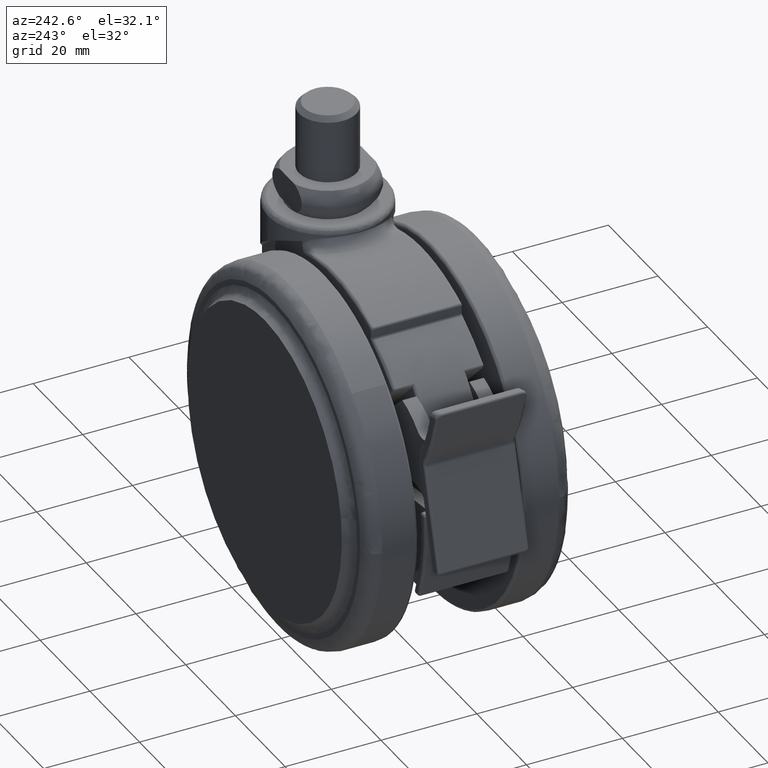
[diagram: clean part render]
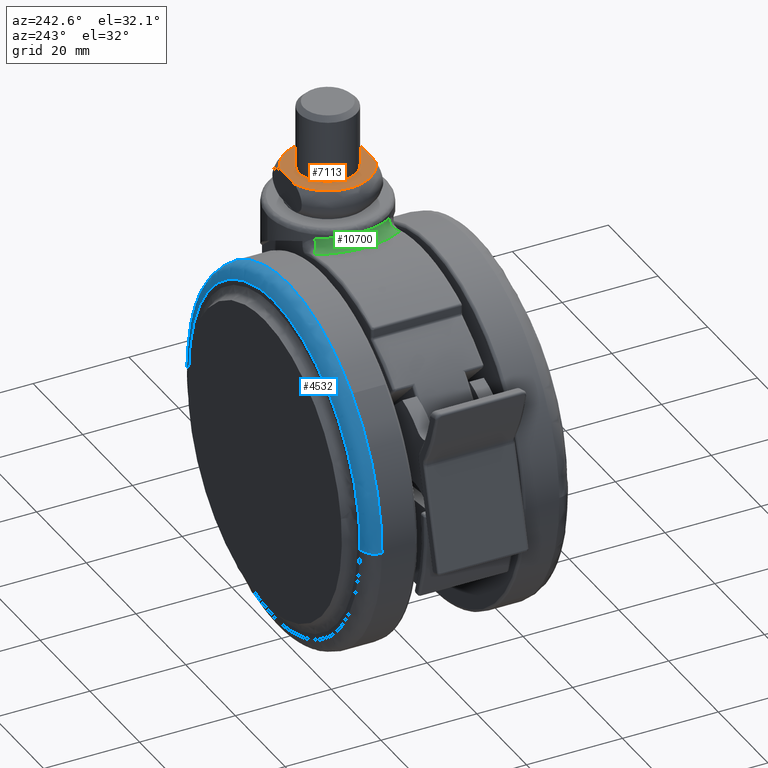
[diagram: same view with three faces highlighted in distinct colors, each labeled with its STEP entity id]
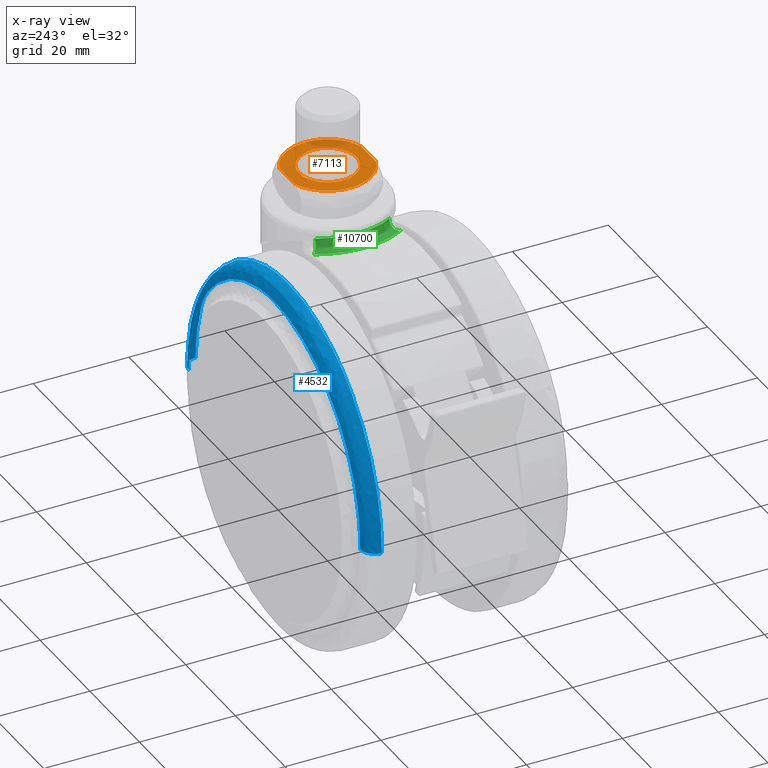
[diagram: x-ray of the same camera — body ghosted, the three highlighted faces saturated]
A machine part, auxiliary view with three faces highlighted in distinct colors.
The next image is the same camera in x-ray (body ghosted, the three faces saturated) — at least one of them is partly hidden behind the body in this view.
Their STEP definitions:

[orange] entity #7113 — the highlighted face is a freeform B-spline surface patch.
#6767=CARTESIAN_POINT('',(0.052359213223113,5.999771538383024,6.499999999999730));
#6768=VERTEX_POINT('',#6767);
#6774=CARTESIAN_POINT('',(-6.0,2.842171E-014,6.499999999999730));
#6775=VERTEX_POINT('',#6774);
#6776=CARTESIAN_POINT('',(0.052359213223113,5.999771538383026,6.499999999999730));
#6777=CARTESIAN_POINT('',(0.026180105040651,6.000000000000029,6.499999999999731));
#6778=CARTESIAN_POINT('',(0.0,6.000000000000028,6.499999999999730));
#6779=CARTESIAN_POINT('',(-6.0,6.000000000000028,6.499999999999731));
#6780=CARTESIAN_POINT('',(-6.0,2.842171E-014,6.499999999999730));
#6788=(BOUNDED_CURVE()B_SPLINE_CURVE(2,(#6776,#6777,#6778,#6779,#6780),.UNSPECIFIED.,.F.,.U.)B_SPLINE_CURVE_WITH_KNOTS((3,2,3),(0.248460105658176,0.250000000000000,0.500000000000000),.UNSPECIFIED.)CURVE()GEOMETRIC_REPRESENTATION_ITEM()RATIONAL_B_SPLINE_CURVE((0.996414028084584,0.998195901558362,1.0,0.707106781186548,1.0))REPRESENTATION_ITEM(''));
#6789=EDGE_CURVE('',#6768,#6775,#6788,.T.);
#6791=CARTESIAN_POINT('',(-0.052359213223113,-5.999771538382967,6.499999999999729));
#6792=VERTEX_POINT('',#6791);
#6793=CARTESIAN_POINT('',(-6.0,2.842171E-014,6.499999999999730));
#6794=CARTESIAN_POINT('',(-6.000000000000001,-5.947867263338975,6.499999999999731));
#6795=CARTESIAN_POINT('',(-0.052359213223114,-5.999771538382967,6.499999999999730));
#6803=(BOUNDED_CURVE()B_SPLINE_CURVE(2,(#6793,#6794,#6795),.UNSPECIFIED.,.F.,.U.)B_SPLINE_CURVE_WITH_KNOTS((3,3),(0.500000000000000,0.748460105658176),.UNSPECIFIED.)CURVE()GEOMETRIC_REPRESENTATION_ITEM()RATIONAL_B_SPLINE_CURVE((1.0,0.708910879628185,0.996414028084584))REPRESENTATION_ITEM(''));
#6804=EDGE_CURVE('',#6775,#6792,#6803,.T.);
#6834=CARTESIAN_POINT('',(6.0,2.842171E-014,6.499999999999730));
#6835=VERTEX_POINT('',#6834);
#6836=CARTESIAN_POINT('',(-0.052359213223114,-5.999771538382967,6.499999999999730));
#6837=CARTESIAN_POINT('',(-0.026180105040651,-5.999999999999972,6.499999999999730));
#6838=CARTESIAN_POINT('',(0.0,-5.999999999999972,6.499999999999730));
#6839=CARTESIAN_POINT('',(6.0,-5.999999999999970,6.499999999999731));
#6840=CARTESIAN_POINT('',(6.0,2.842171E-014,6.499999999999730));
#6848=(BOUNDED_CURVE()B_SPLINE_CURVE(2,(#6836,#6837,#6838,#6839,#6840),.UNSPECIFIED.,.F.,.U.)B_SPLINE_CURVE_WITH_KNOTS((3,2,3),(0.748460105658176,0.750000000000000,1.0),.UNSPECIFIED.)CURVE()GEOMETRIC_REPRESENTATION_ITEM()RATIONAL_B_SPLINE_CURVE((0.996414028084584,0.998195901558362,1.0,0.707106781186548,1.0))REPRESENTATION_ITEM(''));
#6849=EDGE_CURVE('',#6792,#6835,#6848,.T.);
#6851=CARTESIAN_POINT('',(6.0,2.842171E-014,6.499999999999730));
#6852=CARTESIAN_POINT('',(5.999999999999999,5.947867263339033,6.499999999999730));
#6853=CARTESIAN_POINT('',(0.052359213223113,5.999771538383026,6.499999999999730));
#6861=(BOUNDED_CURVE()B_SPLINE_CURVE(2,(#6851,#6852,#6853),.UNSPECIFIED.,.F.,.U.)B_SPLINE_CURVE_WITH_KNOTS((3,3),(0.0,0.248460105658176),.UNSPECIFIED.)CURVE()GEOMETRIC_REPRESENTATION_ITEM()RATIONAL_B_SPLINE_CURVE((1.0,0.708910879628185,0.996414028084584))REPRESENTATION_ITEM(''));
#6862=EDGE_CURVE('',#6835,#6768,#6861,.T.);
#6892=CARTESIAN_POINT('',(2.958037778009130,8.500000000000000,6.499999999999620));
#6893=VERTEX_POINT('',#6892);
#6957=CARTESIAN_POINT('',(2.958037778009625,-8.499999999999911,6.500000005047590));
#6958=VERTEX_POINT('',#6957);
#6959=CARTESIAN_POINT('',(2.958037778009130,8.500000000000000,6.499999999999620));
#6960=CARTESIAN_POINT('',(3.450471789791480,8.328674877310331,6.500000000411056));
#6961=CARTESIAN_POINT('',(4.431981336880804,7.888200311602330,6.500000001231056));
#6962=CARTESIAN_POINT('',(5.584003302275835,7.099344023012740,6.500000002193604));
#6963=CARTESIAN_POINT('',(6.628591784893149,6.135420301316323,6.500000003066159));
#6964=CARTESIAN_POINT('',(7.617276336929360,4.914798155761678,6.500000003893173));
#6965=CARTESIAN_POINT('',(8.427791304637349,3.331336107949301,6.500000004566722));
#6966=CARTESIAN_POINT('',(8.924742280020190,1.538044099653736,6.500000004993979));
#6967=CARTESIAN_POINT('',(9.057393769681706,-0.175487109177838,6.500000005062931));
#6968=CARTESIAN_POINT('',(8.836724667914334,-1.994721209292290,6.500000005042486));
#6969=CARTESIAN_POINT('',(8.280114974681263,-3.682237788190198,6.500000005049047));
#6970=CARTESIAN_POINT('',(7.410328424283218,-5.196323585905008,6.500000005047383));
#6971=CARTESIAN_POINT('',(6.261169792903575,-6.547379351125835,6.500000005047615));
#6972=CARTESIAN_POINT('',(4.796803141335110,-7.702773943022631,6.500000005047601));
#6973=CARTESIAN_POINT('',(3.587282182677676,-8.281141085214323,6.500000005047573));
#6974=CARTESIAN_POINT('',(2.958037778009625,-8.499999999999911,6.500000005047590));
#6975=B_SPLINE_CURVE_WITH_KNOTS('',3,(#6959,#6960,#6961,#6962,#6963,#6964,#6965,#6966,#6967,#6968,#6969,#6970,#6971,#6972,#6973,#6974),.UNSPECIFIED.,.F.,.U.,(4,1,1,1,1,1,1,1,1,1,1,1,1,4),(0.000000192242798,1.564162556582112,3.215277752408213,4.171166189164936,5.822273905647311,7.907869952999008,9.472102464231288,11.383811692289090,13.034890967556329,14.946708697081741,16.684719789597850,18.248926019357238,20.247646021490791,22.246291718154030),.UNSPECIFIED.);
#6976=EDGE_CURVE('',#6893,#6958,#6975,.T.);
#7064=CARTESIAN_POINT('',(-9.899099201056602,-9.349149967050611,6.500000002523620));
#7065=CARTESIAN_POINT('',(9.899099683854189,-9.349149967050611,6.500000002523620));
#7066=CARTESIAN_POINT('',(-9.899099201056602,9.349150423026231,6.500000002523620));
#7067=CARTESIAN_POINT('',(9.899099683854189,9.349150423026231,6.500000002523620));
#7068=B_SPLINE_SURFACE_WITH_KNOTS('',1,1,((#7064,#7066),(#7065,#7067)),.UNSPECIFIED.,.F.,.F.,.U.,(2,2),(2,2),(0.0,19.798198884910789),(0.0,18.698300390076842),.UNSPECIFIED.);
#7069=CARTESIAN_POINT('',(-2.958037778009130,8.500000000000000,6.500000005047590));
#7070=VERTEX_POINT('',#7069);
#7071=CARTESIAN_POINT('',(2.958037778009130,8.500000000000000,6.499999999999620));
#7072=CARTESIAN_POINT('',(-2.958037778009130,8.500000000000000,6.500000005047590));
#7073=QUASI_UNIFORM_CURVE('',1,(#7071,#7072),.UNSPECIFIED.,.F.,.U.);
#7074=EDGE_CURVE('',#6893,#7070,#7073,.T.);
#7075=ORIENTED_EDGE('',*,*,#7074,.T.);
#7076=CARTESIAN_POINT('',(-2.958037778009625,-8.499999999999911,6.499999999999620));
#7077=VERTEX_POINT('',#7076);
#7078=CARTESIAN_POINT('',(-2.958037778009625,-8.499999999999911,6.499999999999620));
#7079=CARTESIAN_POINT('',(-3.505191640945327,-8.309661604369689,6.500000000456753));
#7080=CARTESIAN_POINT('',(-4.456791574253676,-7.871449562081987,6.500000001251817));
#7081=CARTESIAN_POINT('',(-5.603591382843556,-7.077992358055911,6.500000002209936));
#7082=CARTESIAN_POINT('',(-6.567442417667633,-6.197171119240892,6.500000003015228));
#7083=CARTESIAN_POINT('',(-7.326306664548474,-5.278412197983465,6.500000003649253));
#7084=CARTESIAN_POINT('',(-8.024343454167111,-4.140781605865873,6.500000004232393));
#7085=CARTESIAN_POINT('',(-8.488137373949472,-3.074735887196934,6.500000004620105));
#7086=CARTESIAN_POINT('',(-8.842811778932871,-1.818496998494626,6.500000004917118));
#7087=CARTESIAN_POINT('',(-9.049761467326716,-0.350737382126485,6.500000005082399));
#7088=CARTESIAN_POINT('',(-8.964676692575551,1.249957576164630,6.500000005036982));
#7089=CARTESIAN_POINT('',(-8.597027895506502,2.774549533199301,6.500000005049102));
#7090=CARTESIAN_POINT('',(-8.104555607089273,3.985623964878834,6.500000005047969));
#7091=CARTESIAN_POINT('',(-7.325349404209156,5.312510051283311,6.500000005047355));
#7092=CARTESIAN_POINT('',(-6.261878011762858,6.550612389649610,6.500000005047541));
#7093=CARTESIAN_POINT('',(-4.743226544974553,7.725153657144978,6.500000005047991));
#7094=CARTESIAN_POINT('',(-3.614657331387783,8.271644136897930,6.500000005046799));
#7095=CARTESIAN_POINT('',(-2.958037778009130,8.500000000000000,6.500000005047590));
#7096=B_SPLINE_CURVE_WITH_KNOTS('',3,(#7078,#7079,#7080,#7081,#7082,#7083,#7084,#7085,#7086,#7087,#7088,#7089,#7090,#7091,#7092,#7093,#7094,#7095),.UNSPECIFIED.,.F.,.U.,(4,1,1,1,1,1,1,1,1,1,1,1,1,1,1,4),(0.000000192246205,1.737942532596673,3.128360514341786,4.171166189166815,5.648475213840698,6.691283131285266,8.168573489920295,9.124498555448156,10.601803637032910,12.600432010111859,13.903903936706360,15.294322892246131,16.510918853109320,18.509625382620261,20.160726363808820,22.246291718154069),.UNSPECIFIED.);
#7097=EDGE_CURVE('',#7077,#7070,#7096,.T.);
#7098=ORIENTED_EDGE('',*,*,#7097,.F.);
#7099=CARTESIAN_POINT('',(-2.958037778009625,-8.499999999999911,6.499999999999620));
#7100=CARTESIAN_POINT('',(2.958037778009625,-8.499999999999911,6.500000005047590));
#7101=QUASI_UNIFORM_CURVE('',1,(#7099,#7100),.UNSPECIFIED.,.F.,.U.);
#7102=EDGE_CURVE('',#7077,#6958,#7101,.T.);
#7103=ORIENTED_EDGE('',*,*,#7102,.T.);
#7104=ORIENTED_EDGE('',*,*,#6976,.F.);
#7105=EDGE_LOOP('',(#7075,#7098,#7103,#7104));
#7106=FACE_OUTER_BOUND('',#7105,.T.);
#7107=ORIENTED_EDGE('',*,*,#6862,.F.);
#7108=ORIENTED_EDGE('',*,*,#6849,.F.);
#7109=ORIENTED_EDGE('',*,*,#6804,.F.);
#7110=ORIENTED_EDGE('',*,*,#6789,.F.);
#7111=EDGE_LOOP('',(#7107,#7108,#7109,#7110));
#7112=FACE_BOUND('',#7111,.T.);
#7113=ADVANCED_FACE('',(#7106,#7112),#7068,.T.);

[blue] entity #4532 — the highlighted face is a freeform B-spline surface patch.
#4245=CARTESIAN_POINT('',(17.497039157643002,18.500000000455341,-40.028773504365802));
#4246=VERTEX_POINT('',#4245);
#4262=CARTESIAN_POINT('',(-20.0,18.500000000000000,-3.000000000000003));
#4263=VERTEX_POINT('',#4262);
#4264=CARTESIAN_POINT('',(17.497039157642991,18.500000000455348,-40.028773504365809));
#4265=CARTESIAN_POINT('',(17.031697371515918,18.500000000227672,-3.000000000000004));
#4266=CARTESIAN_POINT('',(-20.0,18.500000000000000,-3.000000000000003));
#4274=(BOUNDED_CURVE()B_SPLINE_CURVE(2,(#4264,#4265,#4266),.UNSPECIFIED.,.F.,.U.)B_SPLINE_CURVE_WITH_KNOTS((3,3),(0.252215704078312,0.500000000000000),.UNSPECIFIED.)CURVE()GEOMETRIC_REPRESENTATION_ITEM()RATIONAL_B_SPLINE_CURVE((0.994854295643921,0.709702639984287,1.0))REPRESENTATION_ITEM(''));
#4275=EDGE_CURVE('',#4246,#4263,#4274,.T.);
#4277=CARTESIAN_POINT('',(-45.334630980545427,18.500000000211710,-12.852098215604499));
#4278=VERTEX_POINT('',#4277);
#4279=CARTESIAN_POINT('',(-20.0,18.500000000000000,-3.000000000000003));
#4280=CARTESIAN_POINT('',(-34.582951035239880,18.500000000087439,-3.000000000000004));
#4281=CARTESIAN_POINT('',(-45.334630980545512,18.500000000211713,-12.852098215604435));
#4289=(BOUNDED_CURVE()B_SPLINE_CURVE(2,(#4279,#4280,#4281),.UNSPECIFIED.,.F.,.U.)B_SPLINE_CURVE_WITH_KNOTS((3,3),(0.500000000000000,0.618415199228371),.UNSPECIFIED.)CURVE()GEOMETRIC_REPRESENTATION_ITEM()RATIONAL_B_SPLINE_CURVE((1.0,0.861267964566265,0.853959782054475))REPRESENTATION_ITEM(''));
#4290=EDGE_CURVE('',#4263,#4278,#4289,.T.);
#4320=CARTESIAN_POINT('',(-57.497039157642988,18.500000000455351,-40.971226495634191));
#4321=VERTEX_POINT('',#4320);
#4322=CARTESIAN_POINT('',(-45.334630980545512,18.500000000211713,-12.852098215604435));
#4323=CARTESIAN_POINT('',(-57.499999999999986,18.500000000352326,-23.999603630427302));
#4324=CARTESIAN_POINT('',(-57.499999999999993,18.500000000452498,-40.500000000000007));
#4325=CARTESIAN_POINT('',(-57.499999999999986,18.500000000453930,-40.735622549700111));
#4326=CARTESIAN_POINT('',(-57.497039157642988,18.500000000455344,-40.971226495634191));
#4334=(BOUNDED_CURVE()B_SPLINE_CURVE(2,(#4322,#4323,#4324,#4325,#4326),.UNSPECIFIED.,.F.,.U.)B_SPLINE_CURVE_WITH_KNOTS((3,2,3),(0.618415199228371,0.750000000000000,0.752215704078312),.UNSPECIFIED.)CURVE()GEOMETRIC_REPRESENTATION_ITEM()RATIONAL_B_SPLINE_CURVE((0.853959782054475,0.845838816620283,1.0,0.997404141202261,0.994854295643921))REPRESENTATION_ITEM(''));
#4335=EDGE_CURVE('',#4278,#4321,#4334,.T.);
#4403=CARTESIAN_POINT('',(-54.497276025979460,21.500000000000028,-40.933528376008518));
#4404=VERTEX_POINT('',#4403);
#4405=CARTESIAN_POINT('',(-57.497039157642988,18.500000000455351,-40.971226495634191));
#4406=CARTESIAN_POINT('',(-57.497039157187622,21.499999999051884,-40.971226495634689));
#4407=CARTESIAN_POINT('',(-54.497276025979460,21.500000000000018,-40.933528376008518));
#4415=(BOUNDED_CURVE()B_SPLINE_CURVE(2,(#4405,#4406,#4407),.UNSPECIFIED.,.F.,.U.)B_SPLINE_CURVE_WITH_KNOTS((3,3),(-1.725134643126181,-0.274865357042298),.UNSPECIFIED.)CURVE()GEOMETRIC_REPRESENTATION_ITEM()RATIONAL_B_SPLINE_CURVE((0.883342149597530,0.624617224213166,0.883342149537418))REPRESENTATION_ITEM(''));
#4416=EDGE_CURVE('',#4321,#4404,#4415,.T.);
#4433=CARTESIAN_POINT('',(14.497276025979470,21.499999999999972,-40.066471623991482));
#4434=VERTEX_POINT('',#4433);
#4450=CARTESIAN_POINT('',(17.497039157642995,18.500000000455348,-40.028773504365795));
#4451=CARTESIAN_POINT('',(17.497039157187558,21.499999999051806,-40.028773504365283));
#4452=CARTESIAN_POINT('',(14.497276025979462,21.499999999999979,-40.066471623991475));
#4460=(BOUNDED_CURVE()B_SPLINE_CURVE(2,(#4450,#4451,#4452),.UNSPECIFIED.,.F.,.U.)B_SPLINE_CURVE_WITH_KNOTS((3,3),(-1.725134643126144,-0.274865357042294),.UNSPECIFIED.)CURVE()GEOMETRIC_REPRESENTATION_ITEM()RATIONAL_B_SPLINE_CURVE((0.883342149597517,0.624617224213172,0.883342149537419))REPRESENTATION_ITEM(''));
#4461=EDGE_CURVE('',#4246,#4434,#4460,.T.);
#4466=CARTESIAN_POINT('',(-57.476606423104158,18.291388672660315,-42.019227127127969));
#4467=CARTESIAN_POINT('',(-57.483153771816106,18.291388672660315,-41.498233097061259));
#4468=CARTESIAN_POINT('',(-57.960913069746020,18.291388672660315,-3.481357414766830));
#4469=CARTESIAN_POINT('',(-20.471135242256434,18.291388672660261,-3.010222172510400));
#4470=CARTESIAN_POINT('',(17.018642585233163,18.291388672660204,-2.539086930253976));
#4471=CARTESIAN_POINT('',(17.496401883162914,18.291388672660208,-40.555962612532966));
#4472=CARTESIAN_POINT('',(17.502949231874652,18.291388672660204,-41.076956642584626));
#4473=CARTESIAN_POINT('',(-57.716376549328963,21.732611522053311,-42.028946931421984));
#4474=CARTESIAN_POINT('',(-57.722965787069199,21.732611522053322,-41.504619653863692));
#4475=CARTESIAN_POINT('',(-58.203781722675366,21.732611522053318,-3.244517277612339));
#4476=CARTESIAN_POINT('',(-20.474149500143856,21.732611522053269,-2.770367777468481));
#4477=CARTESIAN_POINT('',(17.255482722387665,21.732611522053201,-2.296218277324629));
#4478=CARTESIAN_POINT('',(17.736298657993618,21.732611522053208,-40.556320653560448));
#4479=CARTESIAN_POINT('',(17.742887895733666,21.732611522053215,-41.080647931103556));
#4480=CARTESIAN_POINT('',(-54.276634331634099,21.492738090595338,-41.889506619552449));
#4481=CARTESIAN_POINT('',(-54.282622629376625,21.492738090595335,-41.412998110325411));
#4482=CARTESIAN_POINT('',(-54.719588041047047,21.492738090595353,-6.642225872264687));
#4483=CARTESIAN_POINT('',(-20.430906956655864,21.492738090595289,-6.211318915608818));
#4484=CARTESIAN_POINT('',(13.857774127735317,21.492738090595243,-5.780411958952955));
#4485=CARTESIAN_POINT('',(14.294739539405574,21.492738090595243,-40.551184196999550));
#4486=CARTESIAN_POINT('',(14.300727837147914,21.492738090595235,-41.027692706212811));
#4494=(BOUNDED_SURFACE()B_SPLINE_SURFACE(2,2,((#4466,#4473,#4480),(#4467,#4474,#4481),(#4468,#4475,#4482),(#4469,#4476,#4483),(#4470,#4477,#4484),(#4471,#4478,#4485),(#4472,#4479,#4486)),.UNSPECIFIED.,.F.,.F.,.U.)B_SPLINE_SURFACE_WITH_KNOTS((3,1,2,1,3),(3,3),(0.0,1.242400048831903,63.362402489084893,125.482404929337900,126.724804978133210),(0.0,5.468189979833261),.UNSPECIFIED.)GEOMETRIC_REPRESENTATION_ITEM()RATIONAL_B_SPLINE_SURFACE(((0.921146729405180,0.604479481452586,0.921146741237813),(0.915813262248088,0.600979527147212,0.915813274012210),(0.643806437242182,0.422481857576905,0.643806445512228),(0.910479795090997,0.597479572841838,0.910479806786608),(0.643806437242182,0.422481857576905,0.643806445512228),(0.915813262247931,0.600979527147109,0.915813274012053),(0.921146729404866,0.604479481452380,0.921146741237499)))REPRESENTATION_ITEM('')SURFACE());
#4495=ORIENTED_EDGE('',*,*,#4275,.F.);
#4496=ORIENTED_EDGE('',*,*,#4461,.T.);
#4497=CARTESIAN_POINT('',(-20.0,21.500000000000000,-5.999999999999998));
#4498=VERTEX_POINT('',#4497);
#4499=CARTESIAN_POINT('',(14.497276025979462,21.499999999999972,-40.066471623991468));
#4500=CARTESIAN_POINT('',(14.069161582255688,21.499999999999982,-5.999999999994046));
#4501=CARTESIAN_POINT('',(-20.0,21.500000000000000,-5.999999999999998));
#4509=(BOUNDED_CURVE()B_SPLINE_CURVE(2,(#4499,#4500,#4501),.UNSPECIFIED.,.F.,.U.)B_SPLINE_CURVE_WITH_KNOTS((3,3),(0.252215704078379,0.500000000000000),.UNSPECIFIED.)CURVE()GEOMETRIC_REPRESENTATION_ITEM()RATIONAL_B_SPLINE_CURVE((0.994854295643766,0.709702639984365,1.0))REPRESENTATION_ITEM(''));
#4510=EDGE_CURVE('',#4434,#4498,#4509,.T.);
#4511=ORIENTED_EDGE('',*,*,#4510,.T.);
#4512=CARTESIAN_POINT('',(-20.0,21.500000000000000,-5.999999999999998));
#4513=CARTESIAN_POINT('',(-54.500000000468120,21.500000000000011,-6.000000000005882));
#4514=CARTESIAN_POINT('',(-54.500000000942158,21.500000000000028,-40.500000000011852));
#4515=CARTESIAN_POINT('',(-54.500000000945143,21.500000000000028,-40.716772745742539));
#4516=CARTESIAN_POINT('',(-54.497276025979467,21.500000000000025,-40.933528376008510));
#4524=(BOUNDED_CURVE()B_SPLINE_CURVE(2,(#4512,#4513,#4514,#4515,#4516),.UNSPECIFIED.,.F.,.U.)B_SPLINE_CURVE_WITH_KNOTS((3,2,3),(0.500000000000000,0.750000000000000,0.752215704078379),.UNSPECIFIED.)CURVE()GEOMETRIC_REPRESENTATION_ITEM()RATIONAL_B_SPLINE_CURVE((1.0,0.707106781186548,1.0,0.997404141202182,0.994854295643767))REPRESENTATION_ITEM(''));
#4525=EDGE_CURVE('',#4498,#4404,#4524,.T.);
#4526=ORIENTED_EDGE('',*,*,#4525,.T.);
#4527=ORIENTED_EDGE('',*,*,#4416,.F.);
#4528=ORIENTED_EDGE('',*,*,#4335,.F.);
#4529=ORIENTED_EDGE('',*,*,#4290,.F.);
#4530=EDGE_LOOP('',(#4495,#4496,#4511,#4526,#4527,#4528,#4529));
#4531=FACE_OUTER_BOUND('',#4530,.T.);
#4532=ADVANCED_FACE('',(#4531),#4494,.T.);

[green] entity #10700 — the highlighted face is a freeform B-spline surface patch.
#8979=CARTESIAN_POINT('',(-9.800704311122360,7.758620689655350,-1.954537490956625));
#8980=VERTEX_POINT('',#8979);
#9000=CARTESIAN_POINT('',(-9.800704311122590,-7.758620689654999,-1.954537490956570));
#9001=VERTEX_POINT('',#9000);
#9002=CARTESIAN_POINT('',(-9.800704311122360,7.758620689655350,-1.954537490956625));
#9003=CARTESIAN_POINT('',(-10.233022073398660,7.212516075704393,-1.842243082395648));
#9004=CARTESIAN_POINT('',(-10.617613684867230,6.633492574924800,-1.752481070375588));
#9005=CARTESIAN_POINT('',(-11.037836876225690,5.869121833822256,-1.660897896724260));
#9006=CARTESIAN_POINT('',(-11.118838355963231,5.714205598049523,-1.643624272998240));
#9007=CARTESIAN_POINT('',(-11.274661625907260,5.400251588964521,-1.611020076142875));
#9008=CARTESIAN_POINT('',(-11.349545094852470,5.241038295571516,-1.595678230629833));
#9009=CARTESIAN_POINT('',(-11.563058835757969,4.761123340530631,-1.552709101461905));
#9010=CARTESIAN_POINT('',(-11.691203861512109,4.436954959252818,-1.527990057442679));
#9011=CARTESIAN_POINT('',(-12.033954077417610,3.452132301940014,-1.463695289331811));
#9012=CARTESIAN_POINT('',(-12.207155517419469,2.779248773430241,-1.433816562007660));
#9013=CARTESIAN_POINT('',(-12.353279548905700,1.917560620888108,-1.409079645025228));
#9014=CARTESIAN_POINT('',(-12.378962995906591,1.744186740703513,-1.404776195066508));
#9015=CARTESIAN_POINT('',(-12.423121915873001,1.395332972385705,-1.397420131924964));
#9016=CARTESIAN_POINT('',(-12.441590086980000,1.219702975341921,-1.394368763548847));
#9017=CARTESIAN_POINT('',(-12.485620960654281,0.694713026261944,-1.387119410066257));
#9018=CARTESIAN_POINT('',(-12.500073329349840,0.345604531009854,-1.384773608188095));
#9019=CARTESIAN_POINT('',(-12.499852503608530,-0.699135403153185,-1.384809626610458));
#9020=CARTESIAN_POINT('',(-12.441899758388431,-1.392200302719216,-1.394083041472294));
#9021=CARTESIAN_POINT('',(-12.296310069845889,-2.254179866658578,-1.418722471509542));
#9022=CARTESIAN_POINT('',(-12.263510778817690,-2.426356677721547,-1.424317299355810));
#9023=CARTESIAN_POINT('',(-12.190428211832620,-2.770264132146376,-1.436938863160316));
#9024=CARTESIAN_POINT('',(-12.150123100832539,-2.942027982475997,-1.443969747871560));
#9025=CARTESIAN_POINT('',(-12.062409884964440,-3.283182569119276,-1.459491087748620));
#9026=CARTESIAN_POINT('',(-12.014895256290069,-3.452983261144440,-1.468000673158702));
#9027=CARTESIAN_POINT('',(-11.913216715494841,-3.788940341443722,-1.486503630116379));
#9028=CARTESIAN_POINT('',(-11.859013424217000,-3.955280258911889,-1.496503753291417));
#9029=CARTESIAN_POINT('',(-11.571479225923939,-4.778904652822346,-1.550481022055400));
#9030=CARTESIAN_POINT('',(-11.288914518705930,-5.412131281784323,-1.606192704186302));
#9031=CARTESIAN_POINT('',(-10.788044009023031,-6.323629927886473,-1.715330379641302));
#9032=CARTESIAN_POINT('',(-10.608187376025651,-6.621039804103535,-1.756008968326257));
#9033=CARTESIAN_POINT('',(-10.318711800448130,-7.057240158333188,-1.824718148790328));
#9034=CARTESIAN_POINT('',(-10.218952456024370,-7.200932685759837,-1.848904205893434));
#9035=CARTESIAN_POINT('',(-10.014060284757560,-7.483249124315740,-1.899760237257036));
#9036=CARTESIAN_POINT('',(-9.908785275569782,-7.622092611201537,-1.926463492989440));
#9037=CARTESIAN_POINT('',(-9.800704311122589,-7.758620689655002,-1.954537490956565));
#9038=B_SPLINE_CURVE_WITH_KNOTS('',3,(#9002,#9003,#9004,#9005,#9006,#9007,#9008,#9009,#9010,#9011,#9012,#9013,#9014,#9015,#9016,#9017,#9018,#9019,#9020,#9021,#9022,#9023,#9024,#9025,#9026,#9027,#9028,#9029,#9030,#9031,#9032,#9033,#9034,#9035,#9036,#9037),.UNSPECIFIED.,.F.,.U.,(4,2,2,2,2,2,2,2,2,2,2,2,2,2,2,2,2,4),(0.0,0.125000000000000,0.156250000000000,0.187500000000000,0.250000000000000,0.375000000000000,0.406250000000000,0.437500000000000,0.500000000000000,0.625000000000000,0.656250000000000,0.687500000000000,0.718750000000000,0.750000000000000,0.875000000000000,0.937500000000000,0.968750000000000,1.0),.UNSPECIFIED.);
#9039=EDGE_CURVE('',#8980,#9001,#9038,.T.);
#9474=CARTESIAN_POINT('',(-11.805838924907199,-8.999999999999799,-3.906206478756240));
#9475=VERTEX_POINT('',#9474);
#9489=CARTESIAN_POINT('',(-11.805838924906920,9.000000000000199,-3.906206478756300));
#9490=VERTEX_POINT('',#9489);
#9491=CARTESIAN_POINT('',(-11.805838924907199,-8.999999999999799,-3.906206478756240));
#9492=CARTESIAN_POINT('',(-11.926650063302940,-8.839252002661658,-3.879154188397077));
#9493=CARTESIAN_POINT('',(-12.044111540557211,-8.675958238471267,-3.853479611839831));
#9494=CARTESIAN_POINT('',(-12.272341719500860,-8.344315569630147,-3.804674477002289));
#9495=CARTESIAN_POINT('',(-12.383260513504100,-8.175720942855342,-3.781513743864881));
#9496=CARTESIAN_POINT('',(-12.704610587112450,-7.664525689144370,-3.715830759647895));
#9497=CARTESIAN_POINT('',(-12.903669174919500,-7.316621710246329,-3.677082361884552));
#9498=CARTESIAN_POINT('',(-13.456675444742549,-6.252393314288932,-3.573375431617504));
#9499=CARTESIAN_POINT('',(-13.766737253476659,-5.515690235254415,-3.520798847902592));
#9500=CARTESIAN_POINT('',(-14.081060400969941,-4.561253822078476,-3.470009328009770));
#9501=CARTESIAN_POINT('',(-14.140239556041211,-4.368677583159531,-3.460610731442236));
#9502=CARTESIAN_POINT('',(-14.251133852645641,-3.980113683509821,-3.443236948322924));
#9503=CARTESIAN_POINT('',(-14.302877804968221,-3.783969623384966,-3.435257591657548));
#9504=CARTESIAN_POINT('',(-14.398338713238401,-3.390140085416443,-3.420710336762117));
#9505=CARTESIAN_POINT('',(-14.442164639874450,-3.192007814944516,-3.414125617027332));
#9506=CARTESIAN_POINT('',(-14.521605720781089,-2.795449523399484,-3.402307231293860));
#9507=CARTESIAN_POINT('',(-14.557252206753819,-2.596941671337482,-3.397068594576617));
#9508=CARTESIAN_POINT('',(-14.715455265497420,-1.603279406154955,-3.373999062487971));
#9509=CARTESIAN_POINT('',(-14.778335160212571,-0.804780264794485,-3.365323263524406));
#9510=CARTESIAN_POINT('',(-14.778553561338910,0.398230927775019,-3.365292554086371));
#9511=CARTESIAN_POINT('',(-14.762862492008670,0.800116478744403,-3.367488309329601));
#9512=CARTESIAN_POINT('',(-14.715113284378770,1.404299999150554,-3.374264575137401));
#9513=CARTESIAN_POINT('',(-14.695097261854670,1.606350870604196,-3.377114975557455));
#9514=CARTESIAN_POINT('',(-14.647190100132869,2.008072833284444,-3.383992512999909));
#9515=CARTESIAN_POINT('',(-14.619310736305950,2.207853623263223,-3.388017937216486));
#9516=CARTESIAN_POINT('',(-14.460555190439610,3.201425114573143,-3.411173859305354));
#9517=CARTESIAN_POINT('',(-14.271994841340900,3.979332644004980,-3.439184762139114));
#9518=CARTESIAN_POINT('',(-13.897171617744140,5.120679773975009,-3.499709419589014));
#9519=CARTESIAN_POINT('',(-13.756823739424631,5.496854230182184,-3.523008739348636));
#9520=CARTESIAN_POINT('',(-13.522513298482020,6.054481093038886,-3.563589113729748));
#9521=CARTESIAN_POINT('',(-13.440270334928201,6.239593714801405,-3.578088668624844));
#9522=CARTESIAN_POINT('',(-13.268790964895530,6.605211293179017,-3.608965661471623));
#9523=CARTESIAN_POINT('',(-13.179526651682400,6.785828933624313,-3.625346772360298));
#9524=CARTESIAN_POINT('',(-12.715720968238170,7.677998888504802,-3.712341789016044));
#9525=CARTESIAN_POINT('',(-12.289070399486400,8.357025413212011,-3.798000245998258));
#9526=CARTESIAN_POINT('',(-11.805838924906920,9.000000000000199,-3.906206478756295));
#9527=B_SPLINE_CURVE_WITH_KNOTS('',3,(#9491,#9492,#9493,#9494,#9495,#9496,#9497,#9498,#9499,#9500,#9501,#9502,#9503,#9504,#9505,#9506,#9507,#9508,#9509,#9510,#9511,#9512,#9513,#9514,#9515,#9516,#9517,#9518,#9519,#9520,#9521,#9522,#9523,#9524,#9525,#9526),.UNSPECIFIED.,.F.,.U.,(4,2,2,2,2,2,2,2,2,2,2,2,2,2,2,2,2,4),(0.0,0.031250000000000,0.062500000000000,0.125000000000000,0.250000000000000,0.281250000000000,0.312500000000000,0.343750000000000,0.375000000000000,0.500000000000000,0.562500000000000,0.593750000000000,0.625000000000000,0.750000000000000,0.812500000000000,0.843750000000000,0.875000000000000,1.0),.UNSPECIFIED.);
#9528=EDGE_CURVE('',#9475,#9490,#9527,.T.);
#10474=CARTESIAN_POINT('',(-9.800704311122590,-7.758620689654999,-1.954537490956570));
#10475=CARTESIAN_POINT('',(-9.825189973337299,-7.726983537633979,-2.242359714909100));
#10476=CARTESIAN_POINT('',(-9.933802748325352,-7.739713922065776,-2.655591400996137));
#10477=CARTESIAN_POINT('',(-10.200074162286681,-7.864911381488905,-3.138445574647114));
#10478=CARTESIAN_POINT('',(-10.447614359787201,-8.006177756450542,-3.447000331320001));
#10479=CARTESIAN_POINT('',(-10.799770877930390,-8.232942013827129,-3.740439272673949));
#10480=CARTESIAN_POINT('',(-11.265301449747900,-8.565395924495844,-3.943966092182877));
#10481=CARTESIAN_POINT('',(-11.626992665685270,-8.851292036534126,-3.946407597615698));
#10482=CARTESIAN_POINT('',(-11.805838924907199,-8.999999999999799,-3.906206478756240));
#10483=B_SPLINE_CURVE_WITH_KNOTS('',3,(#10474,#10475,#10476,#10477,#10478,#10479,#10480,#10481,#10482),.UNSPECIFIED.,.F.,.U.,(4,1,1,1,1,1,4),(0.000000129372160,0.871512894961747,1.252816744359213,1.688565554412564,2.124283527988241,2.777951454433056,3.486048955061043),.UNSPECIFIED.);
#10484=EDGE_CURVE('',#9001,#9475,#10483,.T.);
#10544=CARTESIAN_POINT('',(-11.714901140693506,-9.170769913595620,-3.926494202139241));
#10545=CARTESIAN_POINT('',(-11.752891609553382,-9.120229719124225,-3.918012381491441));
#10546=CARTESIAN_POINT('',(-11.790882190208238,-9.069689375927620,-3.909530535884088));
#10547=CARTESIAN_POINT('',(-12.303765965774717,-8.387380193222588,-3.795023178431634));
#10548=CARTESIAN_POINT('',(-12.734326841088443,-7.704502374828596,-3.708673456104342));
#10549=CARTESIAN_POINT('',(-13.472790069634419,-6.288815877349462,-3.570508630665126));
#10550=CARTESIAN_POINT('',(-13.784904155171349,-5.551549052758606,-3.517714149879471));
#10551=CARTESIAN_POINT('',(-14.292703120335018,-4.017862445249443,-3.435951294634090));
#10552=CARTESIAN_POINT('',(-14.488288762612546,-3.215535175398411,-3.407026429980840));
#10553=CARTESIAN_POINT('',(-14.744814831780911,-1.611369400698901,-3.369814049238522));
#10554=CARTESIAN_POINT('',(-14.808424199633363,-0.805276879225418,-3.361092641467794));
#10555=CARTESIAN_POINT('',(-14.808044704179450,0.409808540302933,-3.361145693649895));
#10556=CARTESIAN_POINT('',(-14.791869896214195,0.815832784260735,-3.363395904185738));
#10557=CARTESIAN_POINT('',(-14.726591478229135,1.629928990681701,-3.372609333909586));
#10558=CARTESIAN_POINT('',(-14.677330201300180,2.037497724456181,-3.379596557989741));
#10559=CARTESIAN_POINT('',(-14.482998674490304,3.239984274912983,-3.407808300128633));
#10560=CARTESIAN_POINT('',(-14.291225122069037,4.022641886522663,-3.436185179985909));
#10561=CARTESIAN_POINT('',(-13.911715950642680,5.168385973391787,-3.497297396425935));
#10562=CARTESIAN_POINT('',(-13.769827163840024,5.545566665400121,-3.520799060095082));
#10563=CARTESIAN_POINT('',(-13.454565507587809,6.290191667928579,-3.575298159491664));
#10564=CARTESIAN_POINT('',(-13.281322305770686,6.656835528461174,-3.606291741756203));
#10565=CARTESIAN_POINT('',(-12.724716844805341,7.720939176063822,-3.710553283660393));
#10566=CARTESIAN_POINT('',(-12.301809284084991,8.389983387330540,-3.795460037370866));
#10567=CARTESIAN_POINT('',(-11.791038719903680,9.069481126837756,-3.909495588249493));
#10568=CARTESIAN_POINT('',(-11.753204668247349,9.119813221871620,-3.917942486377841));
#10569=CARTESIAN_POINT('',(-11.715370727688827,9.170145169107807,-3.926389359702300));
#10570=CARTESIAN_POINT('',(-11.703556992145973,-9.161067243884892,-3.929071905208563));
#10571=CARTESIAN_POINT('',(-11.741503536788999,-9.110581048977029,-3.920587421258196));
#10572=CARTESIAN_POINT('',(-11.779450137463181,-9.060094779522222,-3.912102924779805));
#10573=CARTESIAN_POINT('',(-12.291734725223355,-8.378522852769814,-3.797560997345896));
#10574=CARTESIAN_POINT('',(-12.721802228057285,-7.696384021947297,-3.711159504888601));
#10575=CARTESIAN_POINT('',(-13.459433628306067,-6.282218209638099,-3.572883109956173));
#10576=CARTESIAN_POINT('',(-13.771204557900059,-5.545738273256373,-3.520028547828233));
#10577=CARTESIAN_POINT('',(-14.278452372920929,-4.013674519550320,-3.438158577650967));
#10578=CARTESIAN_POINT('',(-14.473830721879169,-3.212188642795137,-3.409186727401379));
#10579=CARTESIAN_POINT('',(-14.730085989020983,-1.609697238676183,-3.371911034559472));
#10580=CARTESIAN_POINT('',(-14.793629356192936,-0.804440741552500,-3.363172845802561));
#10581=CARTESIAN_POINT('',(-14.793250257356494,0.409383028161102,-3.363225996074720));
#10582=CARTESIAN_POINT('',(-14.777092322465419,0.814985819731762,-3.365480408835921));
#10583=CARTESIAN_POINT('',(-14.711882305694191,1.628235576663675,-3.374710517569818));
#10584=CARTESIAN_POINT('',(-14.662672690872830,2.035380073680996,-3.381710244851344));
#10585=CARTESIAN_POINT('',(-14.468546243905489,3.236612142425308,-3.409969870220257));
#10586=CARTESIAN_POINT('',(-14.276975975278997,4.018448900531903,-3.438392784937228));
#10587=CARTESIAN_POINT('',(-13.897879102134784,5.162979356113591,-3.499585130164381));
#10588=CARTESIAN_POINT('',(-13.756145430922958,5.539759348898689,-3.523115231656379));
#10589=CARTESIAN_POINT('',(-13.441232210880925,6.283590112156913,-3.577672300190582));
#10590=CARTESIAN_POINT('',(-13.268182130435431,6.649841283007727,-3.608695342269278));
#10591=CARTESIAN_POINT('',(-12.712203163568041,7.712803108819332,-3.713040594585160));
#10592=CARTESIAN_POINT('',(-12.289780358972020,8.381123121944910,-3.797997978254092));
#10593=CARTESIAN_POINT('',(-11.779606484271209,9.059886761303932,-3.912067966864362));
#10594=CARTESIAN_POINT('',(-11.741816230055900,9.110165013004938,-3.920517505505374));
#10595=CARTESIAN_POINT('',(-11.704026031522318,9.160443190623909,-3.928967031696492));
#10596=CARTESIAN_POINT('',(-9.910261180411597,-7.627258260162394,-4.336558117041306));
#10597=CARTESIAN_POINT('',(-9.941474048434024,-7.585486228482146,-4.327605150223944));
#10598=CARTESIAN_POINT('',(-9.972679730100271,-7.543723814267929,-4.318654244710539));
#10599=CARTESIAN_POINT('',(-10.393254316606795,-6.980870860837473,-4.198018412254730));
#10600=CARTESIAN_POINT('',(-10.749651816695003,-6.418052073917824,-4.102617677715543));
#10601=CARTESIAN_POINT('',(-11.365607768601196,-5.247933183546372,-3.945118948882384));
#10602=CARTESIAN_POINT('',(-11.628569918194268,-4.636924882714994,-3.882003364815444));
#10603=CARTESIAN_POINT('',(-12.058743435829772,-3.361359533388775,-3.781966919549151));
#10604=CARTESIAN_POINT('',(-12.225843623262014,-2.691857966184720,-3.745077379537792));
#10605=CARTESIAN_POINT('',(-12.445460855770893,-1.350324289542394,-3.697179315740013));
#10606=CARTESIAN_POINT('',(-12.500216742940646,-0.674827427751191,-3.685634308724530));
#10607=CARTESIAN_POINT('',(-12.499890666456903,0.343422309035093,-3.685703853816589));
#10608=CARTESIAN_POINT('',(-12.485986124884935,0.683672945612518,-3.688660763345960));
#10609=CARTESIAN_POINT('',(-12.429948847331220,1.365524802321139,-3.700681355497677));
#10610=CARTESIAN_POINT('',(-12.387682019362559,1.706699716744486,-3.709775363172334));
#10611=CARTESIAN_POINT('',(-12.221323131275328,2.712275836453646,-3.746074599521792));
#10612=CARTESIAN_POINT('',(-12.057489168542936,3.365337719599517,-3.782255483254175));
#10613=CARTESIAN_POINT('',(-11.735998196601074,4.318244902991042,-3.857022583011589));
#10614=CARTESIAN_POINT('',(-11.616157372382286,4.631424999693016,-3.885392401715818));
#10615=CARTESIAN_POINT('',(-11.351041685989685,5.248699070067562,-3.949853802090573));
#10616=CARTESIAN_POINT('',(-11.205886545417179,5.552123699249290,-3.985930394298520));
#10617=CARTESIAN_POINT('',(-10.741673335629514,6.431616311476734,-4.104717534061236));
#10618=CARTESIAN_POINT('',(-10.391659448215325,6.983005264748566,-4.198475877606781));
#10619=CARTESIAN_POINT('',(-9.972807620202284,7.543552659622585,-4.318617561250743));
#10620=CARTESIAN_POINT('',(-9.941729873292017,7.585143859431224,-4.327531770495984));
#10621=CARTESIAN_POINT('',(-9.910644984699992,7.626744616918348,-4.336448028230964));
#10622=CARTESIAN_POINT('',(-9.696085273890690,-7.890730579902225,-1.966256696668059));
#10623=CARTESIAN_POINT('',(-9.730523846107419,-7.847242735471228,-1.957314918308481));
#10624=CARTESIAN_POINT('',(-9.764962469175480,-7.803754826826920,-1.948373126745646));
#10625=CARTESIAN_POINT('',(-10.229888852777862,-7.216661781426309,-1.827657649648321));
#10626=CARTESIAN_POINT('',(-10.620159456163218,-6.629115577615282,-1.736592790540936));
#10627=CARTESIAN_POINT('',(-11.289542250065178,-5.411025425729013,-1.590832163547855));
#10628=CARTESIAN_POINT('',(-11.572458521794049,-4.776664243548537,-1.535107732176162));
#10629=CARTESIAN_POINT('',(-12.032752827276740,-3.457047490204038,-1.448784946335099));
#10630=CARTESIAN_POINT('',(-12.210041801704417,-2.766707971374524,-1.418232522306035));
#10631=CARTESIAN_POINT('',(-12.442569743226295,-1.386453110487722,-1.378921720071956));
#10632=CARTESIAN_POINT('',(-12.500228652323205,-0.692874856075633,-1.369705412595347));
#10633=CARTESIAN_POINT('',(-12.499884658902285,0.352606715420137,-1.369761468843552));
#10634=CARTESIAN_POINT('',(-12.485222993381829,0.701957563140319,-1.372139164025130));
#10635=CARTESIAN_POINT('',(-12.426051390796964,1.402420930147624,-1.381873736167158));
#10636=CARTESIAN_POINT('',(-12.381398484116263,1.753100864076133,-1.389255951478790));
#10637=CARTESIAN_POINT('',(-12.205246599643298,2.787744472044520,-1.419058391240866));
#10638=CARTESIAN_POINT('',(-12.031413101138162,3.461159802203878,-1.449031899866353));
#10639=CARTESIAN_POINT('',(-11.687407601557501,4.446980566593228,-1.513552443025384));
#10640=CARTESIAN_POINT('',(-11.558792420339941,4.771515197756155,-1.538361076327147));
#10641=CARTESIAN_POINT('',(-11.273023143512463,5.412207401691462,-1.595878368060749));
#10642=CARTESIAN_POINT('',(-11.115986465916825,5.727676262074575,-1.628582848301848));
#10643=CARTESIAN_POINT('',(-10.611448410229043,6.643258209905839,-1.738575560719356));
#10644=CARTESIAN_POINT('',(-10.228094769241109,7.218927301284957,-1.828123432351641));
#10645=CARTESIAN_POINT('',(-9.765105993580526,7.803573588114745,-1.948335864720796));
#10646=CARTESIAN_POINT('',(-9.730810894598221,7.846880258450010,-1.957240394341671));
#10647=CARTESIAN_POINT('',(-9.696515846147726,7.890186864975446,-1.966144910842248));
#10648=CARTESIAN_POINT('',(-9.694730425860055,-7.892397270424631,-1.951262488105718));
#10649=CARTESIAN_POINT('',(-9.729189247830398,-7.848898765090423,-1.942319031958670));
#10650=CARTESIAN_POINT('',(-9.763648171203100,-7.805400131752657,-1.933375549493608));
#10651=CARTESIAN_POINT('',(-10.228853556767334,-7.218156059309060,-1.812635961566132));
#10652=CARTESIAN_POINT('',(-10.619337083946174,-6.630455986893186,-1.721566783415326));
#10653=CARTESIAN_POINT('',(-11.289057030804596,-5.412065785391074,-1.575814251159086));
#10654=CARTESIAN_POINT('',(-11.572099756226299,-4.777557710372462,-1.520102129070032));
#10655=CARTESIAN_POINT('',(-12.032585965040241,-3.457661816199831,-1.433805690985110));
#10656=CARTESIAN_POINT('',(-12.209940171503831,-2.767189372902403,-1.403267303979498));
#10657=CARTESIAN_POINT('',(-12.442551104395168,-1.386686030853983,-1.363976050821193));
#10658=CARTESIAN_POINT('',(-12.500228729150830,-0.692991280340076,-1.354765316234436));
#10659=CARTESIAN_POINT('',(-12.499884620147597,0.352665963962059,-1.354821340572600));
#10660=CARTESIAN_POINT('',(-12.485218071204015,0.702075498434750,-1.357197661614344));
#10661=CARTESIAN_POINT('',(-12.426026268083428,1.402658759830205,-1.366926875546382));
#10662=CARTESIAN_POINT('',(-12.381358000001528,1.753399821478188,-1.374305104471082));
#10663=CARTESIAN_POINT('',(-12.205143207614192,2.788229828932794,-1.404092792128399));
#10664=CARTESIAN_POINT('',(-12.031245692297972,3.461774981765485,-1.434052560844052));
#10665=CARTESIAN_POINT('',(-11.687096603527587,4.447804523116577,-1.498553355320455));
#10666=CARTESIAN_POINT('',(-11.558425665044508,4.772410846059683,-1.523355639444567));
#10667=CARTESIAN_POINT('',(-11.272525464299433,5.413250419097585,-1.580862391034346));
#10668=CARTESIAN_POINT('',(-11.115413656269228,5.728794817277246,-1.613562712340013));
#10669=CARTESIAN_POINT('',(-10.610621427971530,6.644602223691291,-1.723549578368442));
#10670=CARTESIAN_POINT('',(-10.227058213949324,7.220422405466106,-1.813101843424567));
#10671=CARTESIAN_POINT('',(-9.763791794206146,7.805218829642730,-1.933338280092598));
#10672=CARTESIAN_POINT('',(-9.729476493199520,7.848536161674582,-1.942244493321945));
#10673=CARTESIAN_POINT('',(-9.695161292958055,7.891853366507241,-1.951150680398638));
#10681=(BOUNDED_SURFACE()B_SPLINE_SURFACE(3,2,((#10544,#10570,#10596,#10622,#10648),(#10545,#10571,#10597,#10623,#10649),(#10546,#10572,#10598,#10624,#10650),(#10547,#10573,#10599,#10625,#10651),(#10548,#10574,#10600,#10626,#10652),(#10549,#10575,#10601,#10627,#10653),(#10550,#10576,#10602,#10628,#10654),(#10551,#10577,#10603,#10629,#10655),(#10552,#10578,#10604,#10630,#10656),(#10553,#10579,#10605,#10631,#10657),(#10554,#10580,#10606,#10632,#10658),(#10555,#10581,#10607,#10633,#10659),(#10556,#10582,#10608,#10634,#10660),(#10557,#10583,#10609,#10635,#10661),(#10558,#10584,#10610,#10636,#10662),(#10559,#10585,#10611,#10637,#10663),(#10560,#10586,#10612,#10638,#10664),(#10561,#10587,#10613,#10639,#10665),(#10562,#10588,#10614,#10640,#10666),(#10563,#10589,#10615,#10641,#10667),(#10564,#10590,#10616,#10642,#10668),(#10565,#10591,#10617,#10643,#10669),(#10566,#10592,#10618,#10644,#10670),(#10567,#10593,#10619,#10645,#10671),(#10568,#10594,#10620,#10646,#10672),(#10569,#10595,#10621,#10647,#10673)),.UNSPECIFIED.,.F.,.F.,.U.)B_SPLINE_SURFACE_WITH_KNOTS((4,2,2,2,2,2,2,2,2,2,2,2,4),(3,1,1,3),(0.0,0.196304276412047,2.650107703360772,5.103911130309503,7.557714557258235,10.011517984206961,11.238419697681330,12.465321411155699,14.919124838104420,16.146026551578782,17.372928265053151,19.826731692001879,20.023035969114890),(0.0,0.037262423547919,3.763504778339404,3.800767201887256),.UNSPECIFIED.)GEOMETRIC_REPRESENTATION_ITEM()RATIONAL_B_SPLINE_SURFACE(((1.007130634175833,1.003565317087916,0.643468291208409,1.003565317087910,1.007130634175820),(1.007129152332757,1.003564576166379,0.643542383362185,1.003564576166372,1.007129152332744),(1.007127670489681,1.003563835244841,0.643616475515961,1.003563835244834,1.007127670489669),(1.007107665608375,1.003553832804188,0.644616719581289,1.003553832804181,1.007107665608362),(1.007080672350270,1.003540336175135,0.645966382486544,1.003540336175129,1.007080672350257),(1.007023983624904,1.003511991812452,0.648800818754829,1.003511991812446,1.007023983624892),(1.006994172035364,1.003497086017682,0.650291398231859,1.003497086017676,1.006994172035351),(1.006941383397994,1.003470691698997,0.652930830100352,1.003470691698991,1.006941383397981),(1.006918387791834,1.003459193895917,0.654080610408322,1.003459193895911,1.006918387791822),(1.006887485299542,1.003443742649771,0.655625735022958,1.003443742649765,1.006887485299529),(1.006879301389734,1.003439650694867,0.656034930513332,1.003439650694861,1.006879301389722),(1.006879349162770,1.003439674581385,0.656032541861545,1.003439674581379,1.006879349162758),(1.006881396635511,1.003440698317756,0.655930168224487,1.003440698317749,1.006881396635499),(1.006889524060788,1.003444762030394,0.655523796960655,1.003444762030388,1.006889524060775),(1.006895621950938,1.003447810975469,0.655218902453159,1.003447810975463,1.006895621950925),(1.006919010144535,1.003459505072267,0.654049492773301,1.003459505072261,1.006919010144523),(1.006941541292168,1.003470770646084,0.652922935391643,1.003470770646078,1.006941541292155),(1.006980987005182,1.003490493502591,0.650950649740924,1.003490493502585,1.006980987005170),(1.006995056601530,1.003497528300765,0.650247169923561,1.003497528300759,1.006995056601517),(1.007023940338603,1.003511970169302,0.648802983069882,1.003511970169295,1.007023940338591),(1.007038723117911,1.003519361558956,0.648063844104478,1.003519361558949,1.007038723117899),(1.007081324583699,1.003540662291849,0.645933770815104,1.003540662291843,1.007081324583686),(1.007107704966492,1.003553852483246,0.644614751675457,1.003553852483240,1.007107704966479),(1.007127667341037,1.003563833670519,0.643616632948164,1.003563833670512,1.007127667341025),(1.007129146035469,1.003564573017735,0.643542698226592,1.003564573017728,1.007129146035456),(1.007130624729900,1.003565312364950,0.643468763505021,1.003565312364944,1.007130624729888)))REPRESENTATION_ITEM('')SURFACE());
#10682=CARTESIAN_POINT('',(-9.800704311122360,7.758620689655350,-1.954537490956625));
#10683=CARTESIAN_POINT('',(-9.816174704175715,7.738989224531378,-2.134371849142661));
#10684=CARTESIAN_POINT('',(-9.879289502538837,7.731581160671608,-2.458023070202855));
#10685=CARTESIAN_POINT('',(-10.089277837617921,7.805524644833382,-2.978662873046807));
#10686=CARTESIAN_POINT('',(-10.384643168523491,7.965595248912345,-3.394717469343094));
#10687=CARTESIAN_POINT('',(-10.724339716046719,8.184392091148624,-3.677458421598646));
#10688=CARTESIAN_POINT('',(-11.024527239740159,8.392891263686156,-3.841850262259931));
#10689=CARTESIAN_POINT('',(-11.381709999987679,8.656874162772008,-3.947775750283818));
#10690=CARTESIAN_POINT('',(-11.654503975147479,8.874173861427057,-3.940186440221125));
#10691=CARTESIAN_POINT('',(-11.805838924906920,9.000000000000199,-3.906206478756300));
#10692=B_SPLINE_CURVE_WITH_KNOTS('',3,(#10682,#10683,#10684,#10685,#10686,#10687,#10688,#10689,#10690,#10691),.UNSPECIFIED.,.F.,.U.,(4,1,1,1,1,1,1,4),(0.000000129372198,0.544693879692750,0.980456435307226,1.688565554412470,2.124283527988180,2.451122040384608,2.886886519307339,3.486048955061020),.UNSPECIFIED.);
#10693=EDGE_CURVE('',#8980,#9490,#10692,.T.);
#10694=ORIENTED_EDGE('',*,*,#10693,.T.);
#10695=ORIENTED_EDGE('',*,*,#9528,.F.);
#10696=ORIENTED_EDGE('',*,*,#10484,.F.);
#10697=ORIENTED_EDGE('',*,*,#9039,.F.);
#10698=EDGE_LOOP('',(#10694,#10695,#10696,#10697));
#10699=FACE_OUTER_BOUND('',#10698,.T.);
#10700=ADVANCED_FACE('',(#10699),#10681,.F.);